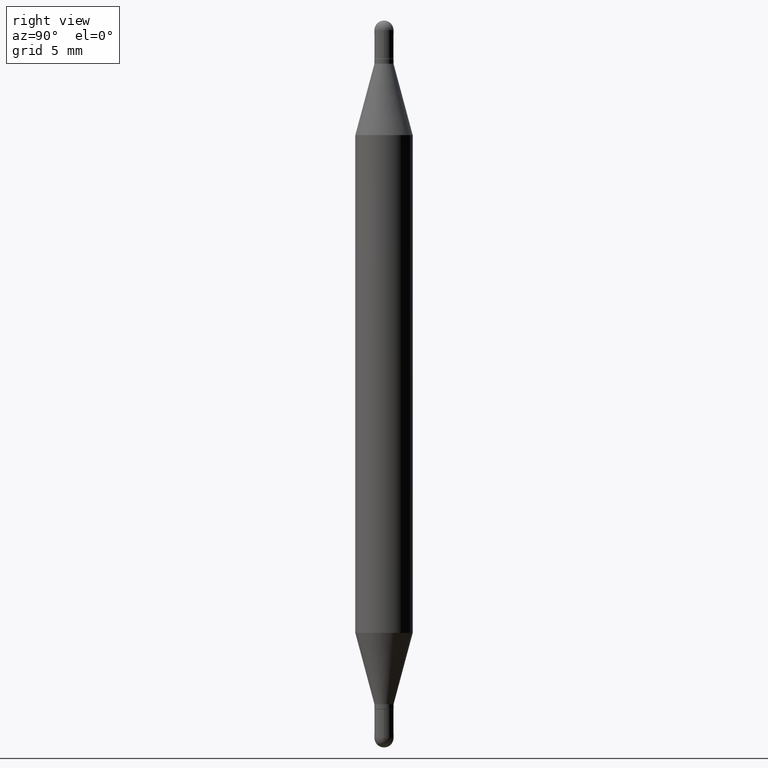
[diagram: clean part render]
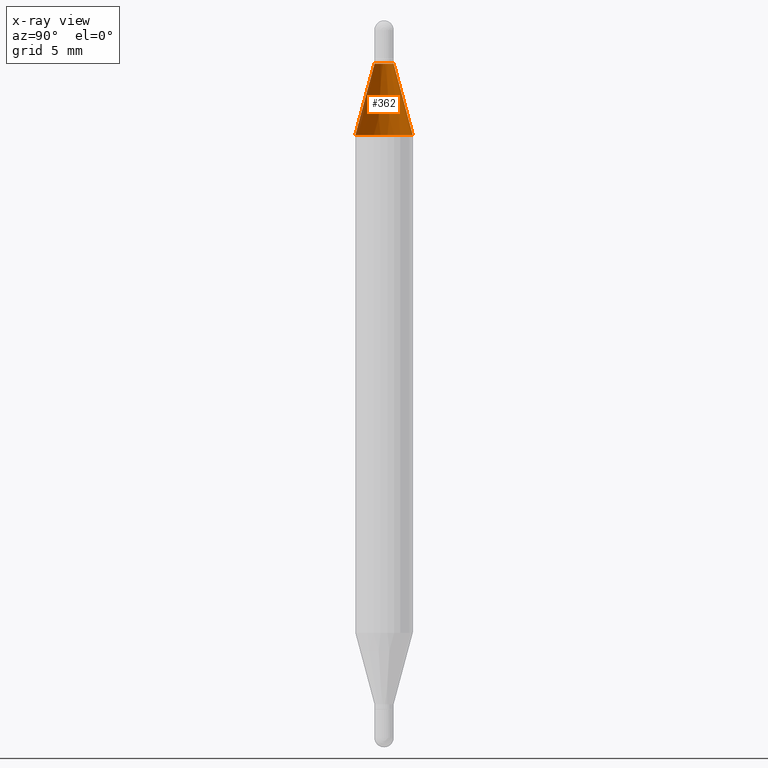
[diagram: x-ray — body ghosted, one internal face saturated and labeled with its STEP entity id]
A machine part, right view, then the same camera in x-ray: the body is ghosted and one INTERNAL B-rep face — a face not visible from any outside direction — is saturated and labeled: STEP entity #362.
In plain terms, the highlighted conical surface has half-angle 15 deg.
Its self-contained STEP definition (entity closure, byte-faithful):
#23 = VECTOR ( 'NONE', #70, 39.37007874015748143 ) ;
#41 = VERTEX_POINT ( 'NONE', #969 ) ;
#70 = DIRECTION ( 'NONE',  ( 1.775627540710965497E-15, 0.2588190451025182415, -0.9659258262890689783 ) ) ;
#76 = DIRECTION ( 'NONE',  ( -6.982962677686265922E-15, -1.000000000000000000, 3.466812174700886453E-15 ) ) ;
#95 = AXIS2_PLACEMENT_3D ( 'NONE', #598, #844, #76 ) ;
#120 = EDGE_LOOP ( 'NONE', ( #329, #978, #972, #669 ) ) ;
#153 = DIRECTION ( 'NONE',  ( -6.982962677686265922E-15, -1.000000000000000000, 3.466812174700886453E-15 ) ) ;
#170 = EDGE_CURVE ( 'NONE', #1090, #656, #649, .T. ) ;
#194 = CARTESIAN_POINT ( 'NONE',  ( -4.123439461173430699E-16, -0.05905000000000081711, -0.2358561992778356042 ) ) ;
#251 = CARTESIAN_POINT ( 'NONE',  ( 1.351518105561319317E-16, 0.01969999999999944365, -0.08900000000000013456 ) ) ;
#273 = DIRECTION ( 'NONE',  ( 2.452517539544845457E-29, 3.489708654337919205E-15, 1.000000000000000000 ) ) ;
#329 = ORIENTED_EDGE ( 'NONE', *, *, #596, .F. ) ;
#362 = ADVANCED_FACE ( 'NONE', ( #417 ), #1018, .T. ) ;
#417 = FACE_OUTER_BOUND ( 'NONE', #120, .T. ) ;
#479 = VECTOR ( 'NONE', #1071, 39.37007874015748143 ) ;
#519 = AXIS2_PLACEMENT_3D ( 'NONE', #752, #939, #153 ) ;
#596 = EDGE_CURVE ( 'NONE', #946, #1090, #802, .T. ) ;
#598 = CARTESIAN_POINT ( 'NONE',  ( 3.450937429893551947E-29, -3.043591700254928596E-16, -0.08900000000000006517 ) ) ;
#620 = AXIS2_PLACEMENT_3D ( 'NONE', #953, #273, #889 ) ;
#649 = LINE ( 'NONE', #1008, #479 ) ;
#656 = VERTEX_POINT ( 'NONE', #194 ) ;
#669 = ORIENTED_EDGE ( 'NONE', *, *, #170, .F. ) ;
#708 = EDGE_CURVE ( 'NONE', #41, #656, #1118, .T. ) ;
#752 = CARTESIAN_POINT ( 'NONE',  ( 3.450937429893551947E-29, -3.043591700254928596E-16, -0.08900000000000006517 ) ) ;
#802 = CIRCLE ( 'NONE', #95, 0.01969999999999974549 ) ;
#837 = LINE ( 'NONE', #251, #23 ) ;
#844 = DIRECTION ( 'NONE',  ( 2.452517539544845457E-29, 3.489708654337919205E-15, 1.000000000000000000 ) ) ;
#889 = DIRECTION ( 'NONE',  ( -6.982962677686265922E-15, -1.000000000000000000, 3.469747663417777002E-15 ) ) ;
#921 = EDGE_CURVE ( 'NONE', #946, #41, #837, .T. ) ;
#939 = DIRECTION ( 'NONE',  ( -2.452517539544845457E-29, -3.489708654337919205E-15, -1.000000000000000000 ) ) ;
#946 = VERTEX_POINT ( 'NONE', #993 ) ;
#953 = CARTESIAN_POINT ( 'NONE',  ( 3.090770025373766700E-29, -8.168445195885310899E-16, -0.2358561992778358263 ) ) ;
#969 = CARTESIAN_POINT ( 'NONE',  ( 4.051124067684398803E-16, 0.05904999999999917953, -0.2358561992778360206 ) ) ;
#972 = ORIENTED_EDGE ( 'NONE', *, *, #708, .T. ) ;
#978 = ORIENTED_EDGE ( 'NONE', *, *, #921, .T. ) ;
#993 = CARTESIAN_POINT ( 'NONE',  ( 1.351518105561320303E-16, 0.01969999999999944365, -0.08900000000000013456 ) ) ;
#1008 = CARTESIAN_POINT ( 'NONE',  ( -1.375643647503831486E-16, -0.01970000000000004733, -0.08899999999999999578 ) ) ;
#1018 = CONICAL_SURFACE ( 'NONE', #519, 0.01969999999999974549, 0.2617993877991502960 ) ;
#1071 = DIRECTION ( 'NONE',  ( -1.807323732225330534E-15, -0.2588190451025250138, -0.9659258262890670910 ) ) ;
#1090 = VERTEX_POINT ( 'NONE', #1114 ) ;
#1114 = CARTESIAN_POINT ( 'NONE',  ( -1.375643647503831486E-16, -0.01970000000000004733, -0.08899999999999999578 ) ) ;
#1118 = CIRCLE ( 'NONE', #620, 0.05905000000000000526 ) ;